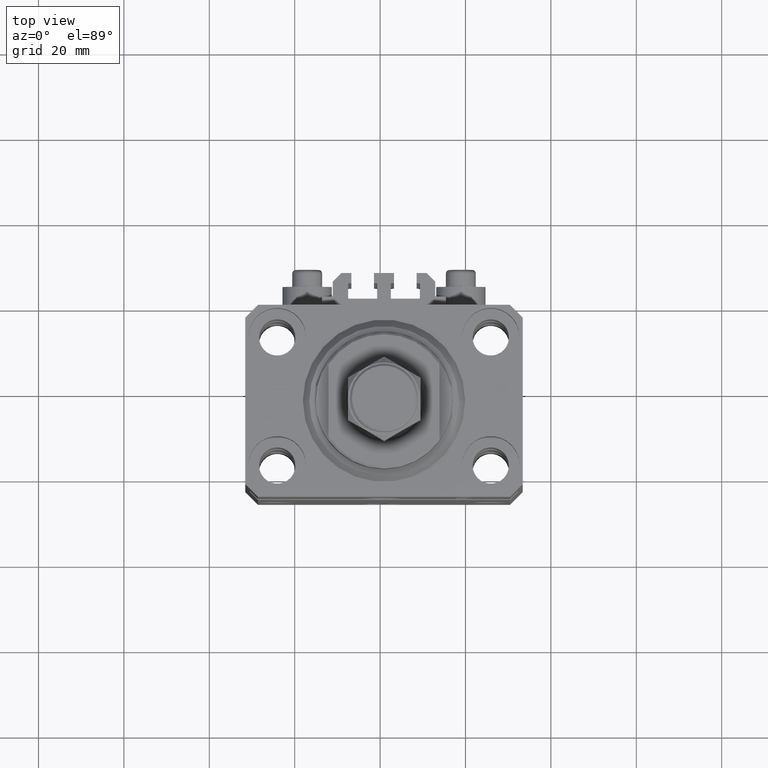
[diagram: clean part render]
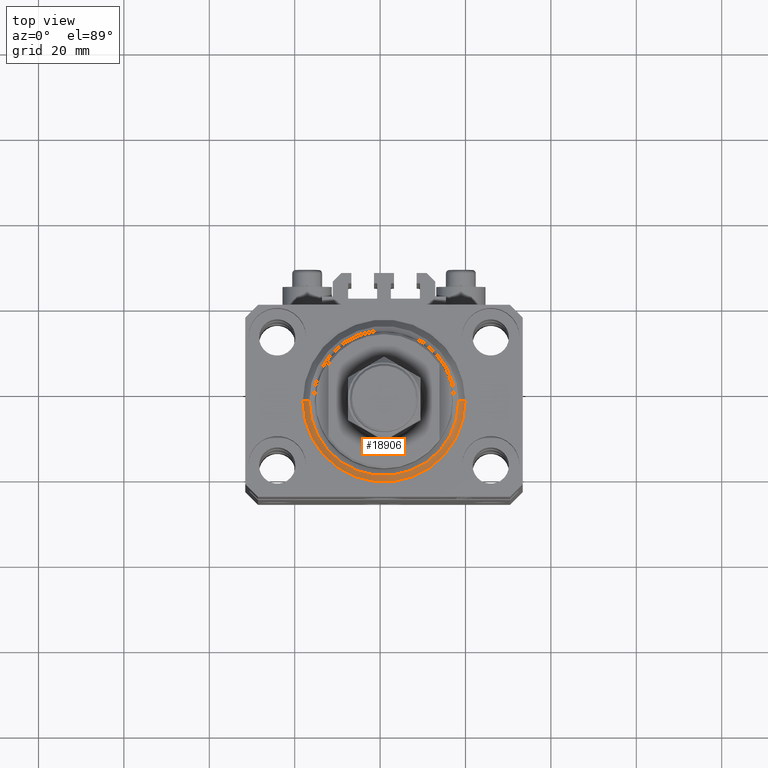
[diagram: same view with one face highlighted and labeled with its STEP entity id]
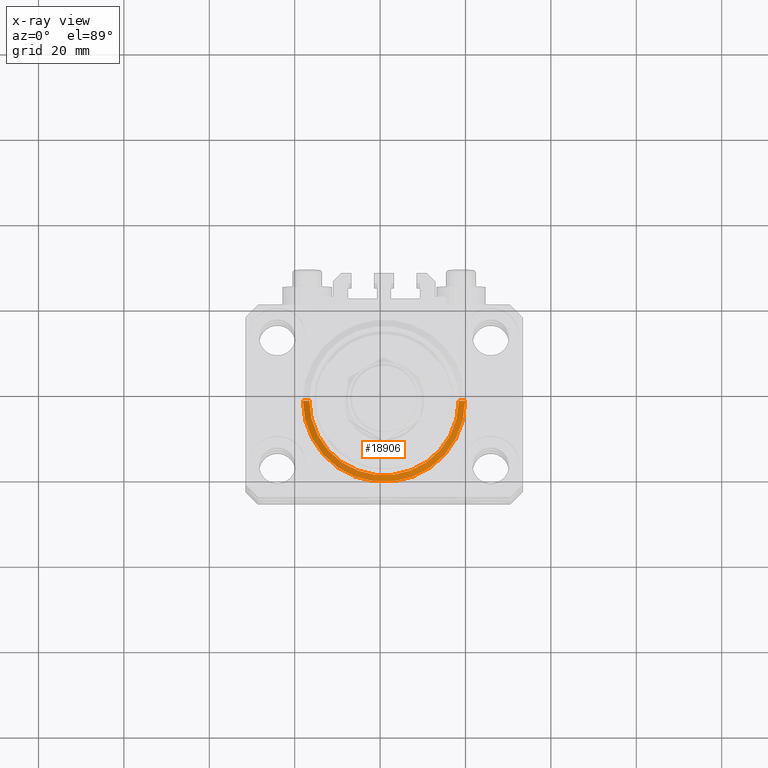
[diagram: x-ray of the same camera — body ghosted, the highlighted face saturated]
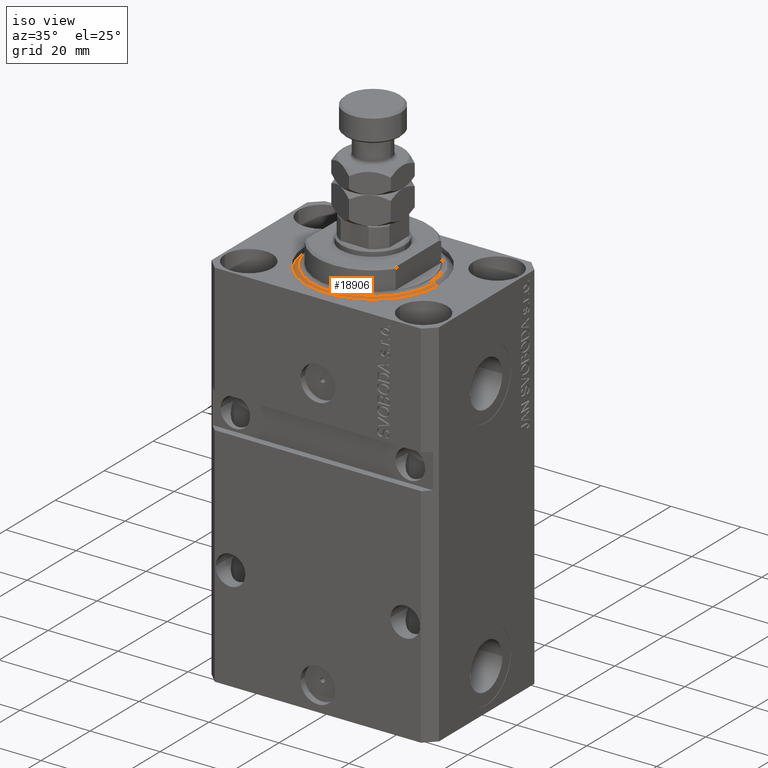
[diagram: same view with one face highlighted and labeled with its STEP entity id]
A machine part, top view. The second image highlights one B-rep face of the part: STEP entity #18906.
The next image is the same camera in x-ray: the body ghosted, the highlighted face saturated — about 0% of this face is hidden behind the body in this view.
A second angle (iso view) of the same face is appended — the face is thin or edge-on in the first view.
In plain terms, the highlighted conical surface has half-angle 45 deg.
Its self-contained STEP definition (entity closure, byte-faithful):
#474 = EDGE_CURVE ( 'NONE', #45074, #49382, #23948, .T. ) ;
#831 = ORIENTED_EDGE ( 'NONE', *, *, #29212, .F. ) ;
#2613 = VECTOR ( 'NONE', #7698, 1000.000000000000000 ) ;
#4331 = DIRECTION ( 'NONE',  ( -0.000000000000000000, -0.000000000000000000, 1.000000000000000000 ) ) ;
#5371 = AXIS2_PLACEMENT_3D ( 'NONE', #16183, #4331, #31339 ) ;
#5626 = AXIS2_PLACEMENT_3D ( 'NONE', #29474, #25687, #45096 ) ;
#7155 = ORIENTED_EDGE ( 'NONE', *, *, #474, .T. ) ;
#7698 = DIRECTION ( 'NONE',  ( -0.7071067811865483499, 8.659560562354943952E-17, 0.7071067811865467956 ) ) ;
#10186 = CIRCLE ( 'NONE', #5371, 19.00000000000000000 ) ;
#10539 = FACE_OUTER_BOUND ( 'NONE', #30117, .T. ) ;
#11396 = VERTEX_POINT ( 'NONE', #28284 ) ;
#12720 = DIRECTION ( 'NONE',  ( 1.000000000000000000, 0.000000000000000000, 0.000000000000000000 ) ) ;
#16183 = CARTESIAN_POINT ( 'NONE',  ( 0.000000000000000000, 0.000000000000000000, 1.500000000000004885 ) ) ;
#16858 = CARTESIAN_POINT ( 'NONE',  ( 19.00000000000000000, 0.000000000000000000, 1.500000000000004885 ) ) ;
#17097 = DIRECTION ( 'NONE',  ( 0.7071067811865483499, 0.000000000000000000, 0.7071067811865467956 ) ) ;
#18905 = CARTESIAN_POINT ( 'NONE',  ( 19.00000000000000000, 2.326828918379970970E-15, 1.500000000000004885 ) ) ;
#18906 = ADVANCED_FACE ( 'NONE', ( #10539 ), #43630, .T. ) ;
#19487 = EDGE_CURVE ( 'NONE', #45074, #11396, #44302, .T. ) ;
#22307 = ORIENTED_EDGE ( 'NONE', *, *, #40723, .F. ) ;
#23948 = LINE ( 'NONE', #16858, #30021 ) ;
#25687 = DIRECTION ( 'NONE',  ( -0.000000000000000000, -0.000000000000000000, 1.000000000000000000 ) ) ;
#26725 = VERTEX_POINT ( 'NONE', #31680 ) ;
#28284 = CARTESIAN_POINT ( 'NONE',  ( -17.49999999999999289, 2.234980408443919215E-15, 0.000000000000000000 ) ) ;
#29005 = AXIS2_PLACEMENT_3D ( 'NONE', #31900, #47296, #12720 ) ;
#29212 = EDGE_CURVE ( 'NONE', #11396, #26725, #49826, .T. ) ;
#29460 = ORIENTED_EDGE ( 'NONE', *, *, #19487, .F. ) ;
#29474 = CARTESIAN_POINT ( 'NONE',  ( 0.000000000000000000, 0.000000000000000000, 1.500000000000004885 ) ) ;
#30021 = VECTOR ( 'NONE', #17097, 1000.000000000000000 ) ;
#30117 = EDGE_LOOP ( 'NONE', ( #831, #29460, #7155, #22307 ) ) ;
#30662 = CARTESIAN_POINT ( 'NONE',  ( -19.00000000000000000, 2.326828918379970970E-15, 1.500000000000004885 ) ) ;
#31339 = DIRECTION ( 'NONE',  ( 1.000000000000000000, 0.000000000000000000, 0.000000000000000000 ) ) ;
#31680 = CARTESIAN_POINT ( 'NONE',  ( -19.00000000000000000, 0.000000000000000000, 1.500000000000004885 ) ) ;
#31900 = CARTESIAN_POINT ( 'NONE',  ( 0.000000000000000000, 0.000000000000000000, 0.000000000000000000 ) ) ;
#40723 = EDGE_CURVE ( 'NONE', #26725, #49382, #10186, .T. ) ;
#41958 = CARTESIAN_POINT ( 'NONE',  ( 17.49999999999999289, 0.000000000000000000, 0.000000000000000000 ) ) ;
#43630 = CONICAL_SURFACE ( 'NONE', #5626, 19.00000000000000000, 0.7853981633974492782 ) ;
#44302 = CIRCLE ( 'NONE', #29005, 17.49999999999999289 ) ;
#45074 = VERTEX_POINT ( 'NONE', #41958 ) ;
#45096 = DIRECTION ( 'NONE',  ( 1.000000000000000000, 0.000000000000000000, 0.000000000000000000 ) ) ;
#47296 = DIRECTION ( 'NONE',  ( -0.000000000000000000, -0.000000000000000000, -1.000000000000000000 ) ) ;
#49382 = VERTEX_POINT ( 'NONE', #18905 ) ;
#49826 = LINE ( 'NONE', #30662, #2613 ) ;